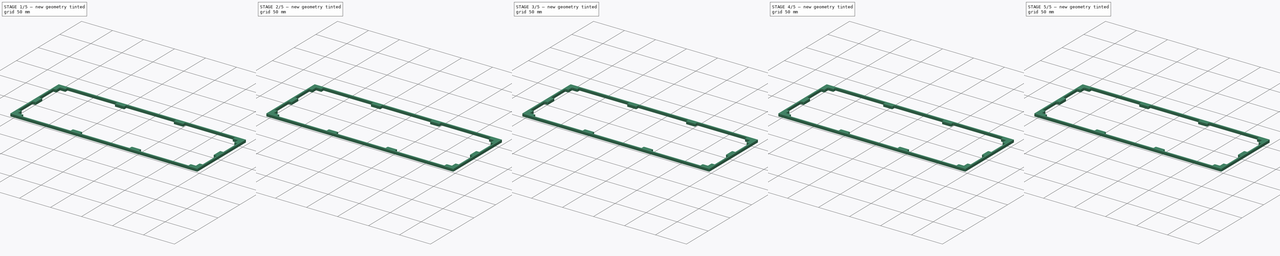
[diagram: build sequence overview — one tinted view per stage of 5, left to right]
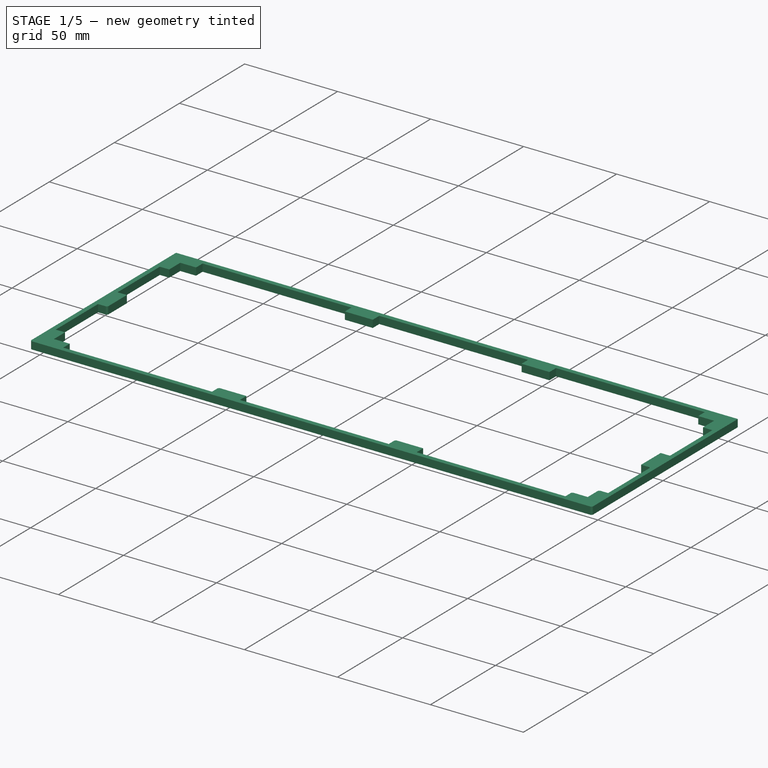
[diagram: stage 1 of 5 — iso view after this stage's code; geometry added in this stage tinted green]
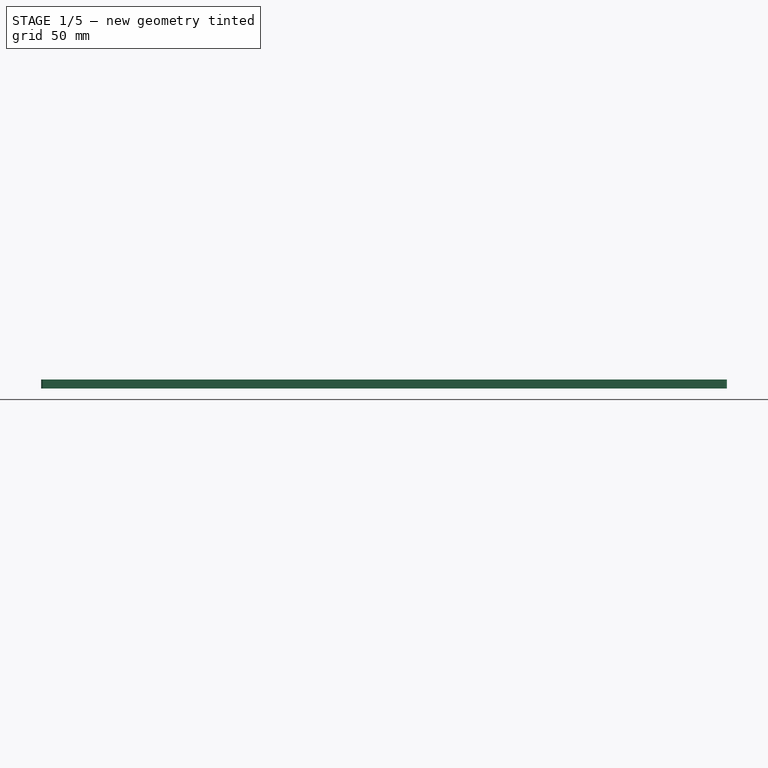
[diagram: stage 1 of 5 — front view after this stage's code; geometry added in this stage tinted green]
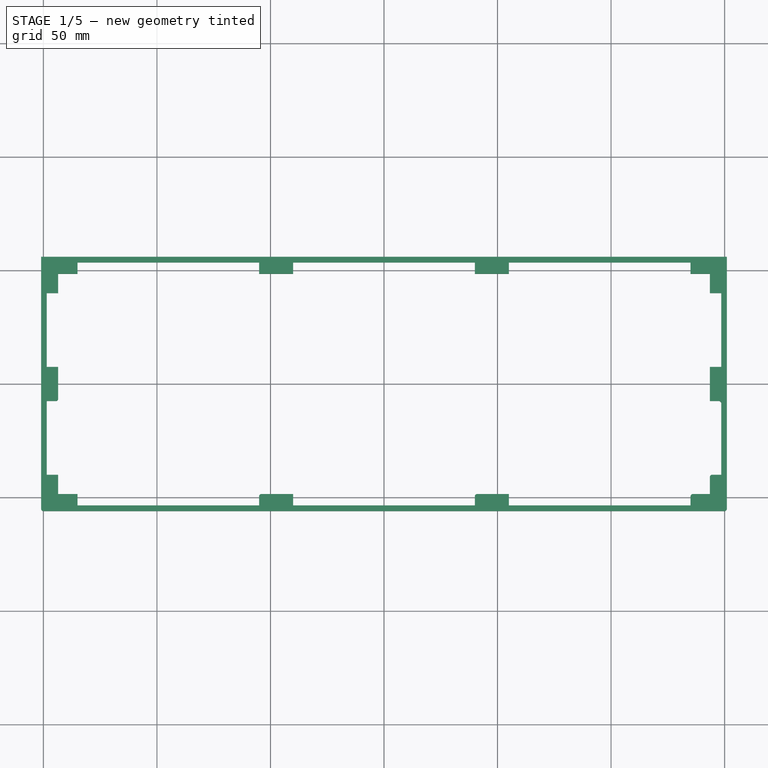
[diagram: stage 1 of 5 — top view after this stage's code; geometry added in this stage tinted green]
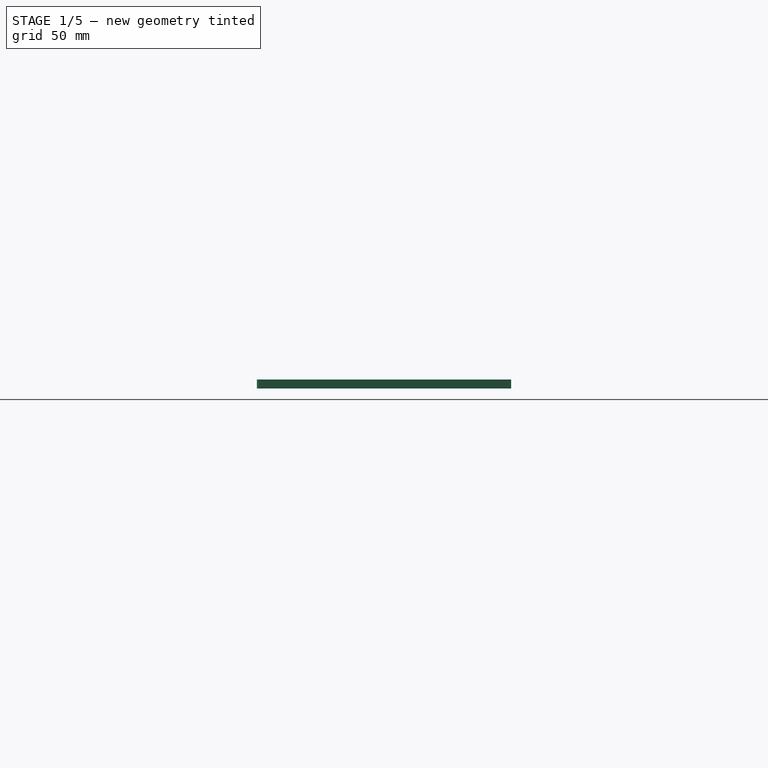
[diagram: stage 1 of 5 — right view after this stage's code; geometry added in this stage tinted green]
FCSTD DOCUMENT  (FreeCAD 0.19R)
Label: jykb60case_02
License: All rights reserved
LicenseURL: http://en.wikipedia.org/wiki/All_rights_reserved
objects: PartDesign::Fillet×48, Sketcher::SketchObject×2, PartDesign::Pad×1, PartDesign::Pocket×1, PartDesign::Body×1
note: 103 computed .brp shape members not serialized (recipe doc carries the construction recipe); baked Part::Feature solids carry a one-line shape summary decoded from their .brp

FEATURE [Sketcher::SketchObject] Sketch
  FullyConstrained = true
  MapMode = 5
  Support = -> [XY_Plane]
  sketch-geometry (8):
    g0: LineSegment StartX=-151 StartY=56 StartZ=0 EndX=151 EndY=56 EndZ=0
    g1: LineSegment StartX=151 StartY=56 StartZ=0 EndX=151 EndY=-56 EndZ=0
    g2: LineSegment StartX=151 StartY=-56 StartZ=0 EndX=-151 EndY=-56 EndZ=0
    g3: LineSegment StartX=-151 StartY=-56 StartZ=0 EndX=-151 EndY=56 EndZ=0
    g4: LineSegment StartX=-143.5 StartY=48.5 StartZ=0 EndX=143.5 EndY=48.5 EndZ=0
    g5: LineSegment StartX=143.5 StartY=48.5 StartZ=0 EndX=143.5 EndY=-48.5 EndZ=0
    g6: LineSegment StartX=143.5 StartY=-48.5 StartZ=0 EndX=-143.5 EndY=-48.5 EndZ=0
    g7: LineSegment StartX=-143.5 StartY=-48.5 StartZ=0 EndX=-143.5 EndY=48.5 EndZ=0
  constraints (22):
    c: Coincident(g0,g1)
    c: Coincident(g1,g2)
    c: Coincident(g2,g3)
    c: Coincident(g3,g0)
    c: Horizontal(g0)
    c: Horizontal(g2)
    c: Vertical(g1)
    c: Vertical(g3)
    c: DistanceX(g0,g0) = 302
    c: DistanceY(g3,g3) = 112
    c: Coincident(g4,g5)
    c: Coincident(g5,g6)
    c: Coincident(g6,g7)
    c: Coincident(g7,g4)
    c: Horizontal(g4)
    c: Horizontal(g6)
    c: Vertical(g5)
    c: Vertical(g7)
    c: DistanceX(g4,g4) = 287
    c: DistanceY(g7,g7) = 97
    c: Symmetric(g4,g5,g-1)
    c: Symmetric(g0,g1,g-1)
FEATURE [PartDesign::Pad] Pad
  Direction = (1,1,1)
  Length = 4
  Length2 = 100
  Profile = -> Sketch
  Type = 0
FEATURE [Sketcher::SketchObject] Sketch001
  FullyConstrained = true
  MapMode = 5
  Placement = pos=(0,0,4) rot=(0,0,1;0rad)
  Support = -> [Pad]
  sketch-geometry (40):
    g0: LineSegment StartX=-40 StartY=53.5 StartZ=0 EndX=40 EndY=53.5 EndZ=0
    g1: LineSegment StartX=40 StartY=53.5 StartZ=0 EndX=40 EndY=48.5 EndZ=0
    g2: LineSegment StartX=40 StartY=48.5 StartZ=0 EndX=-40 EndY=48.5 EndZ=0
    g3: LineSegment StartX=-40 StartY=48.5 StartZ=0 EndX=-40 EndY=53.5 EndZ=0
    g4: LineSegment StartX=-40 StartY=-48.5 StartZ=0 EndX=40 EndY=-48.5 EndZ=0
    g5: LineSegment StartX=40 StartY=-48.5 StartZ=0 EndX=40 EndY=-53.5 EndZ=0
    g6: LineSegment StartX=40 StartY=-53.5 StartZ=0 EndX=-40 EndY=-53.5 EndZ=0
    g7: LineSegment StartX=-40 StartY=-53.5 StartZ=0 EndX=-40 EndY=-48.5 EndZ=0
    g8: LineSegment StartX=-135 StartY=-48.5 StartZ=0 EndX=-55 EndY=-48.5 EndZ=0
    g9: LineSegment StartX=-55 StartY=-48.5 StartZ=0 EndX=-55 EndY=-53.5 EndZ=0
    g10: LineSegment StartX=-55 StartY=-53.5 StartZ=0 EndX=-135 EndY=-53.5 EndZ=0
    g11: LineSegment StartX=-135 StartY=-53.5 StartZ=0 EndX=-135 EndY=-48.5 EndZ=0
    g12: LineSegment StartX=-135 StartY=53.5 StartZ=0 EndX=-55 EndY=53.5 EndZ=0
    g13: LineSegment StartX=-55 StartY=53.5 StartZ=0 EndX=-55 EndY=48.5 EndZ=0
    g14: LineSegment StartX=-55 StartY=48.5 StartZ=0 EndX=-135 EndY=48.5 EndZ=0
    g15: LineSegment StartX=-135 StartY=48.5 StartZ=0 EndX=-135 EndY=53.5 EndZ=0
    g16: LineSegment StartX=55 StartY=53.5 StartZ=0 EndX=135 EndY=53.5 EndZ=0
    g17: LineSegment StartX=135 StartY=53.5 StartZ=0 EndX=135 EndY=48.5 EndZ=0
    g18: LineSegment StartX=135 StartY=48.5 StartZ=0 EndX=55 EndY=48.5 EndZ=0
    g19: LineSegment StartX=55 StartY=48.5 StartZ=0 EndX=55 EndY=53.5 EndZ=0
    g20: LineSegment StartX=55 StartY=-48.5 StartZ=0 EndX=135 EndY=-48.5 EndZ=0
    g21: LineSegment StartX=135 StartY=-48.5 StartZ=0 EndX=135 EndY=-53.5 EndZ=0
    g22: LineSegment StartX=135 StartY=-53.5 StartZ=0 EndX=55 EndY=-53.5 EndZ=0
    g23: LineSegment StartX=55 StartY=-53.5 StartZ=0 EndX=55 EndY=-48.5 EndZ=0
    g24: LineSegment StartX=-148.5 StartY=40 StartZ=0 EndX=-143.5 EndY=40 EndZ=0
    g25: LineSegment StartX=-143.5 StartY=40 StartZ=0 EndX=-143.5 EndY=7.5 EndZ=0
    g26: LineSegment StartX=-143.5 StartY=7.5 StartZ=0 EndX=-148.5 EndY=7.5 EndZ=0
    g27: LineSegment StartX=-148.5 StartY=7.5 StartZ=0 EndX=-148.5 EndY=40 EndZ=0
    g28: LineSegment StartX=-148.5 StartY=-7.5 StartZ=0 EndX=-143.5 EndY=-7.5 EndZ=0
    g29: LineSegment StartX=-143.5 StartY=-7.5 StartZ=0 EndX=-143.5 EndY=-40 EndZ=0
    g30: LineSegment StartX=-143.5 StartY=-40 StartZ=0 EndX=-148.5 EndY=-40 EndZ=0
    g31: LineSegment StartX=-148.5 StartY=-40 StartZ=0 EndX=-148.5 EndY=-7.5 EndZ=0
    g32: LineSegment StartX=143.5 StartY=40 StartZ=0 EndX=148.5 EndY=40 EndZ=0
    g33: LineSegment StartX=148.5 StartY=40 StartZ=0 EndX=148.5 EndY=7.5 EndZ=0
    g34: LineSegment StartX=148.5 StartY=7.5 StartZ=0 EndX=143.5 EndY=7.5 EndZ=0
    g35: LineSegment StartX=143.5 StartY=7.5 StartZ=0 EndX=143.5 EndY=40 EndZ=0
    g36: LineSegment StartX=143.5 StartY=-7.5 StartZ=0 EndX=148.5 EndY=-7.5 EndZ=0
    g37: LineSegment StartX=148.5 StartY=-7.5 StartZ=0 EndX=148.5 EndY=-40 EndZ=0
    g38: LineSegment StartX=148.5 StartY=-40 StartZ=0 EndX=143.5 EndY=-40 EndZ=0
    g39: LineSegment StartX=143.5 StartY=-40 StartZ=0 EndX=143.5 EndY=-7.5 EndZ=0
  constraints (120):
    c: Coincident(g0,g1)
    c: Coincident(g1,g2)
    c: Coincident(g2,g3)
    c: Coincident(g3,g0)
    c: Horizontal(g0)
    c: Horizontal(g2)
    c: Vertical(g1)
    c: Vertical(g3)
    c: DistanceX(g0,g0) = 80
    c: DistanceY(g3,g3) = 5
    c: DistanceY(g-1,g1) = 48.5
    c: DistanceX(g-1,g0) = 40
    c: Coincident(g4,g5)
    c: Coincident(g5,g6)
    c: Coincident(g6,g7)
    c: Coincident(g7,g4)
    c: Horizontal(g4)
    c: Horizontal(g6)
    c: Vertical(g5)
    c: Vertical(g7)
    c: DistanceX(g6,g6) = 80
    c: DistanceY(g7,g7) = 5
    c: DistanceY(g4,g-1) = 48.5
    c: DistanceX(g4,g-1) = 40
    c: Coincident(g8,g9)
    c: Coincident(g9,g10)
    c: Coincident(g10,g11)
    c: Coincident(g11,g8)
    c: Horizontal(g8)
    c: Horizontal(g10)
    c: Vertical(g9)
    c: Vertical(g11)
    c: DistanceX(g10,g10) = 80
    c: DistanceY(g11,g11) = 5
    c: DistanceY(g8,g-1) = 48.5
    c: DistanceX(g9,g6) = 15
    c: Coincident(g12,g13)
    c: Coincident(g13,g14)
    c: Coincident(g14,g15)
    c: Coincident(g15,g12)
    c: Horizontal(g12)
    c: Horizontal(g14)
    c: Vertical(g13)
    c: Vertical(g15)
    c: DistanceX(g12,g12) = 80
    c: DistanceY(g15,g15) = 5
    c: DistanceY(g-1,g13) = 48.5
    c: DistanceX(g12,g0) = 15
    c: Coincident(g16,g17)
    c: Coincident(g17,g18)
    c: Coincident(g18,g19)
    c: Coincident(g19,g16)
    c: Horizontal(g16)
    c: Horizontal(g18)
    c: Vertical(g17)
    c: Vertical(g19)
    c: DistanceX(g16,g16) = 80
    c: DistanceY(g19,g19) = 5
    c: DistanceY(g-1,g18) = 48.5
    c: DistanceX(g0,g16) = 15
    c: Coincident(g20,g21)
    c: Coincident(g21,g22)
    c: Coincident(g22,g23)
    c: Coincident(g23,g20)
    c: Horizontal(g20)
    c: Horizontal(g22)
    c: Vertical(g21)
    c: Vertical(g23)
    c: DistanceX(g20,g20) = 80
    c: DistanceY(g23,g23) = 5
    c: DistanceY(g20,g-1) = 48.5
    c: DistanceX(g5,g22) = 15
    c: Coincident(g24,g25)
    c: Coincident(g25,g26)
    c: Coincident(g26,g27)
    c: Coincident(g27,g24)
    c: Horizontal(g24)
    c: Horizontal(g26)
    c: Vertical(g25)
    c: Vertical(g27)
    c: DistanceY(g27,g27) = 32.5
    c: DistanceX(g26,g26) = 5
    c: DistanceX(g24,g-1) = 143.5
    c: DistanceY(g-1,g26) = 7.5
    c: Coincident(g28,g29)
    c: Coincident(g29,g30)
    c: Coincident(g30,g31)
    c: Coincident(g31,g28)
    c: Horizontal(g28)
    c: Horizontal(g30)
    c: Vertical(g29)
    c: Vertical(g31)
    c: DistanceY(g31,g31) = 32.5
    c: DistanceX(g30,g30) = 5
    c: DistanceX(g28,g-1) = 143.5
    c: DistanceY(g28,g-1) = 7.5
    c: Coincident(g32,g33)
    c: Coincident(g33,g34)
    c: Coincident(g34,g35)
    c: Coincident(g35,g32)
    c: Horizontal(g32)
    c: Horizontal(g34)
    c: Vertical(g33)
    c: Vertical(g35)
    c: DistanceY(g33,g33) = 32.5
    c: DistanceX(g32,g32) = 5
    c: DistanceX(g-1,g34) = 143.5
    c: DistanceY(g-1,g33) = 7.5
    c: Coincident(g36,g37)
    c: Coincident(g37,g38)
    c: Coincident(g38,g39)
    c: Coincident(g39,g36)
    c: Horizontal(g36)
    c: Horizontal(g38)
    c: Vertical(g37)
    c: Vertical(g39)
    c: DistanceY(g37,g37) = 32.5
    c: DistanceX(g38,g38) = 5
    c: DistanceX(g-1,g36) = 143.5
    c: DistanceY(g36,g-1) = 7.5
FEATURE [PartDesign::Pocket] Pocket
  BaseFeature = -> Pad
  Length = 5
  Length2 = 100
  Profile = -> Sketch001
  Type = 0
FEATURE [PartDesign::Fillet] Fillet
  Base = -> Pocket [Edge5]
  BaseFeature = -> Pocket
  Radius = 1
  SupportTransform = false
FEATURE [PartDesign::Fillet] Fillet001
  Base = -> Fillet [Edge108]
  BaseFeature = -> Fillet
  Radius = 1
  SupportTransform = false
FEATURE [PartDesign::Fillet] Fillet002
  Base = -> Fillet001 [Edge81]
  BaseFeature = -> Fillet001
  Radius = 1
  SupportTransform = false
FEATURE [PartDesign::Fillet] Fillet003
  Base = -> Fillet002 [Edge72]
  BaseFeature = -> Fillet002
  Radius = 1
  SupportTransform = false
FEATURE [PartDesign::Fillet] Fillet004
  Base = -> Fillet003 [Edge73]
  BaseFeature = -> Fillet003
  Radius = 1
  SupportTransform = false
FEATURE [PartDesign::Fillet] Fillet005
  Base = -> Fillet004 [Edge66]
  BaseFeature = -> Fillet004
  Radius = 1
  SupportTransform = false
FEATURE [PartDesign::Fillet] Fillet006
  Base = -> Fillet005 [Edge160]
  BaseFeature = -> Fillet005
  Radius = 1
  SupportTransform = false
FEATURE [PartDesign::Fillet] Fillet007
  Base = -> Fillet006 [Edge80]
  BaseFeature = -> Fillet006
  Radius = 1
  SupportTransform = false
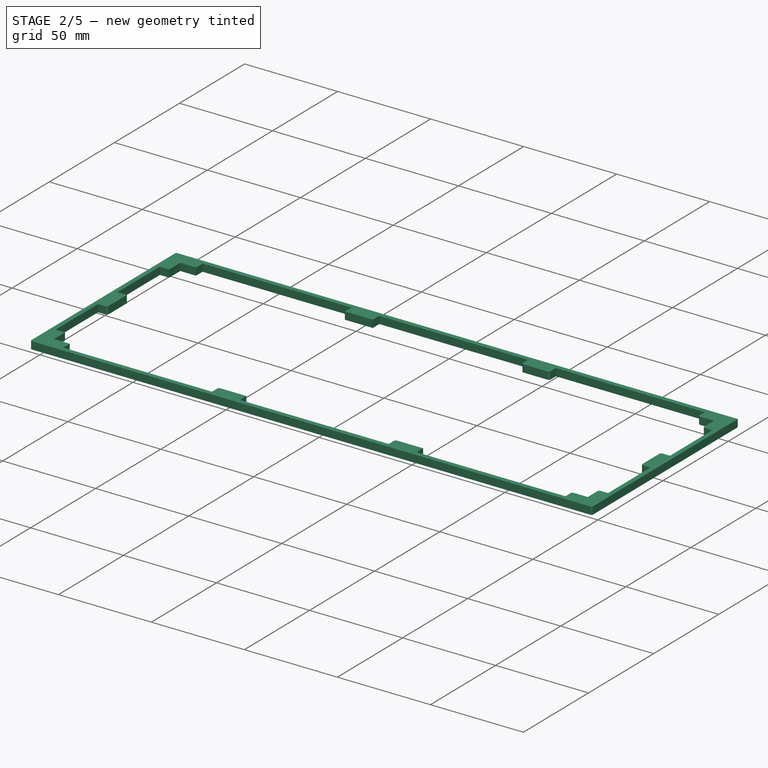
[diagram: stage 2 of 5 — iso view after this stage's code; geometry added in this stage tinted green]
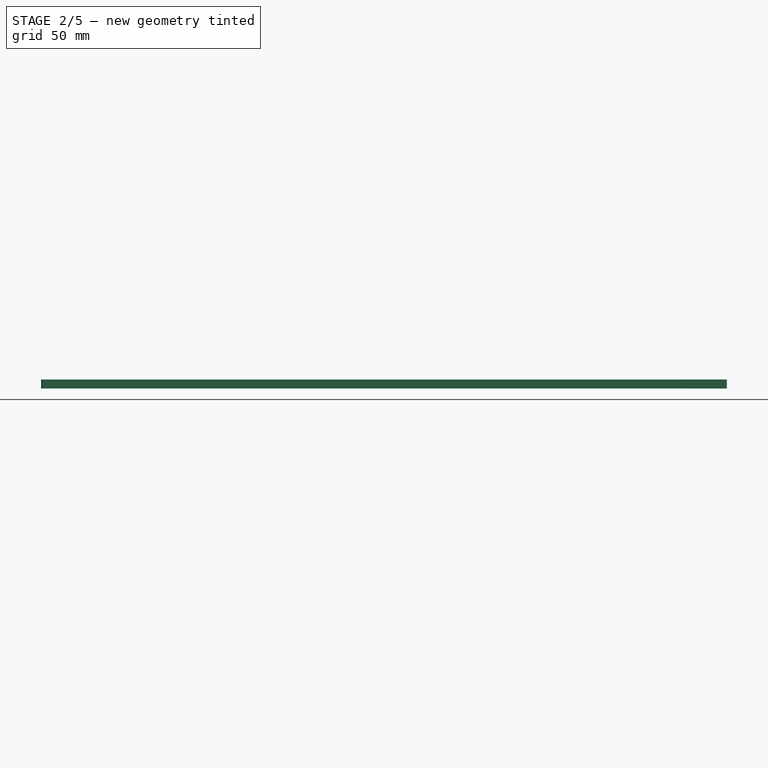
[diagram: stage 2 of 5 — front view after this stage's code; geometry added in this stage tinted green]
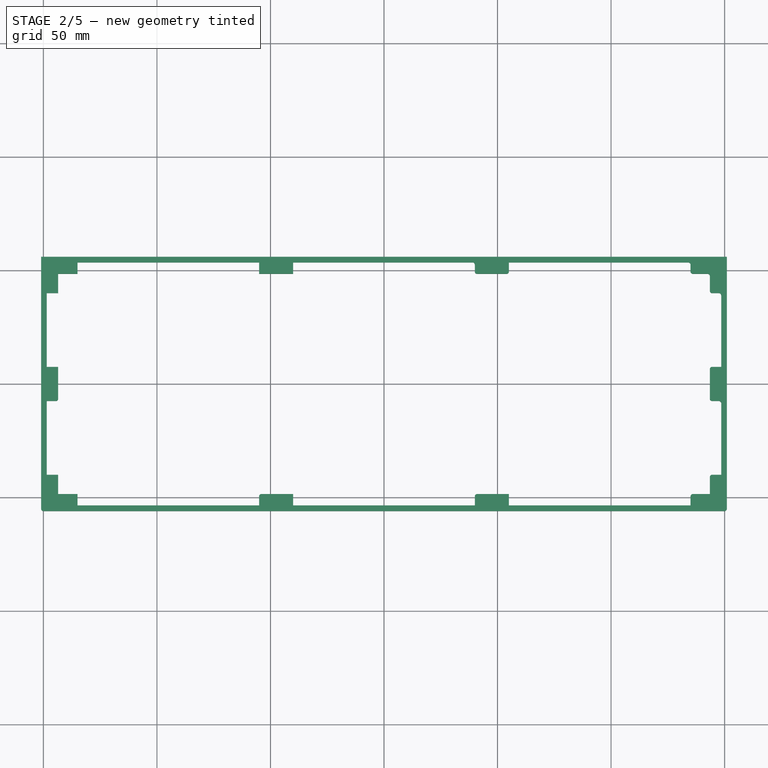
[diagram: stage 2 of 5 — top view after this stage's code; geometry added in this stage tinted green]
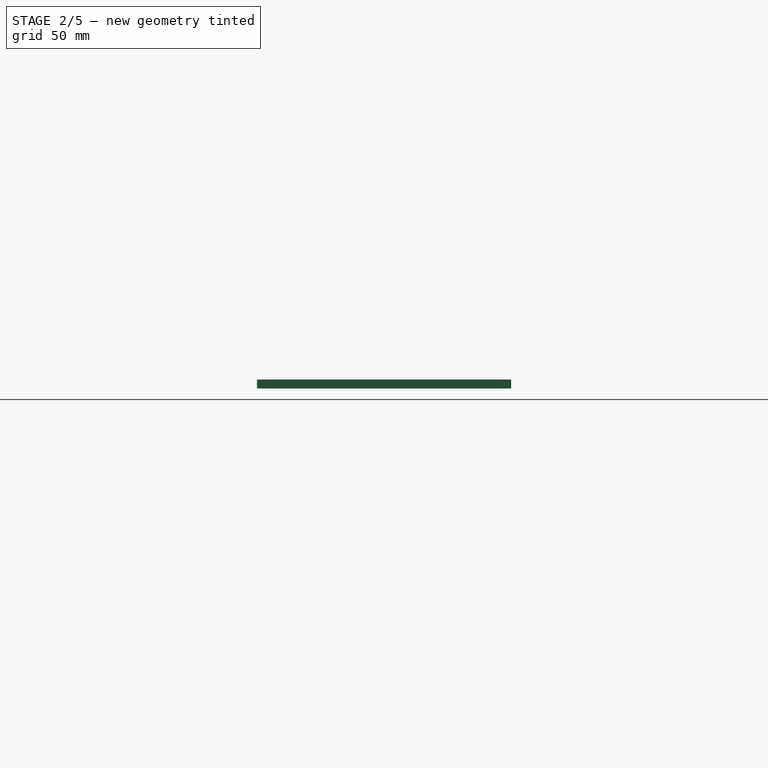
[diagram: stage 2 of 5 — right view after this stage's code; geometry added in this stage tinted green]
FEATURE [PartDesign::Fillet] Fillet008
  Base = -> Fillet007 [Edge65]
  BaseFeature = -> Fillet007
  Radius = 1
  SupportTransform = false
FEATURE [PartDesign::Fillet] Fillet009
  Base = -> Fillet008 [Edge65]
  BaseFeature = -> Fillet008
  Radius = 1
  SupportTransform = false
FEATURE [PartDesign::Fillet] Fillet010
  Base = -> Fillet009 [Edge71]
  BaseFeature = -> Fillet009
  Radius = 1
  SupportTransform = false
FEATURE [PartDesign::Fillet] Fillet011
  Base = -> Fillet010 [Edge68]
  BaseFeature = -> Fillet010
  Radius = 1
  SupportTransform = false
FEATURE [PartDesign::Fillet] Fillet012
  Base = -> Fillet011 [Edge68]
  BaseFeature = -> Fillet011
  Radius = 1
  SupportTransform = false
FEATURE [PartDesign::Fillet] Fillet013
  Base = -> Fillet012 [Edge69]
  BaseFeature = -> Fillet012
  Radius = 1
  SupportTransform = false
FEATURE [PartDesign::Fillet] Fillet014
  Base = -> Fillet013 [Edge71]
  BaseFeature = -> Fillet013
  Radius = 1
  SupportTransform = false
FEATURE [PartDesign::Fillet] Fillet015
  Base = -> Fillet014 [Edge76]
  BaseFeature = -> Fillet014
  Radius = 1
  SupportTransform = false
FEATURE [PartDesign::Fillet] Fillet016
  Base = -> Fillet015 [Edge72]
  BaseFeature = -> Fillet015
  Radius = 1
  SupportTransform = false
FEATURE [PartDesign::Fillet] Fillet017
  Base = -> Fillet016 [Edge74]
  BaseFeature = -> Fillet016
  Radius = 1
  SupportTransform = false
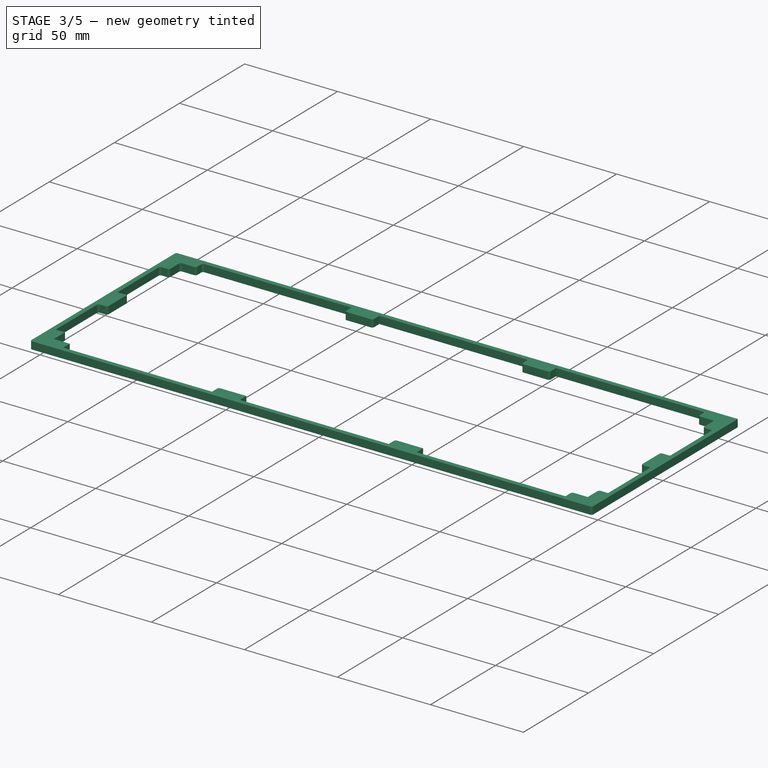
[diagram: stage 3 of 5 — iso view after this stage's code; geometry added in this stage tinted green]
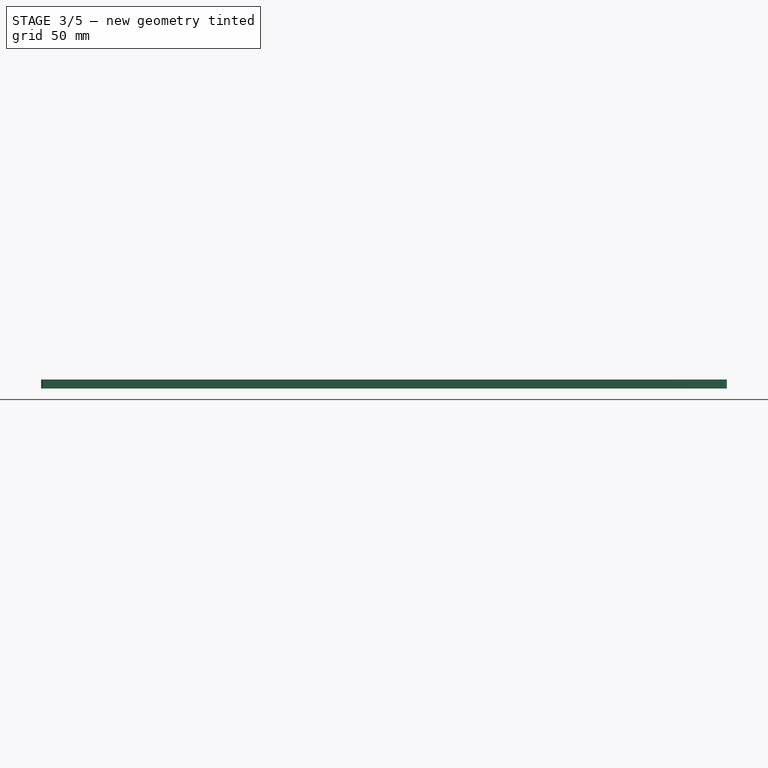
[diagram: stage 3 of 5 — front view after this stage's code; geometry added in this stage tinted green]
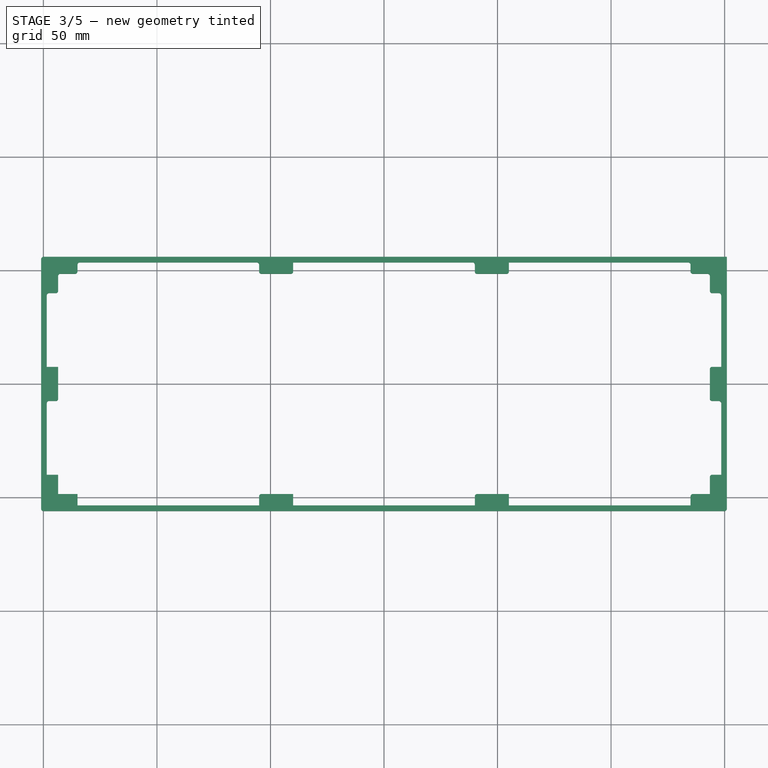
[diagram: stage 3 of 5 — top view after this stage's code; geometry added in this stage tinted green]
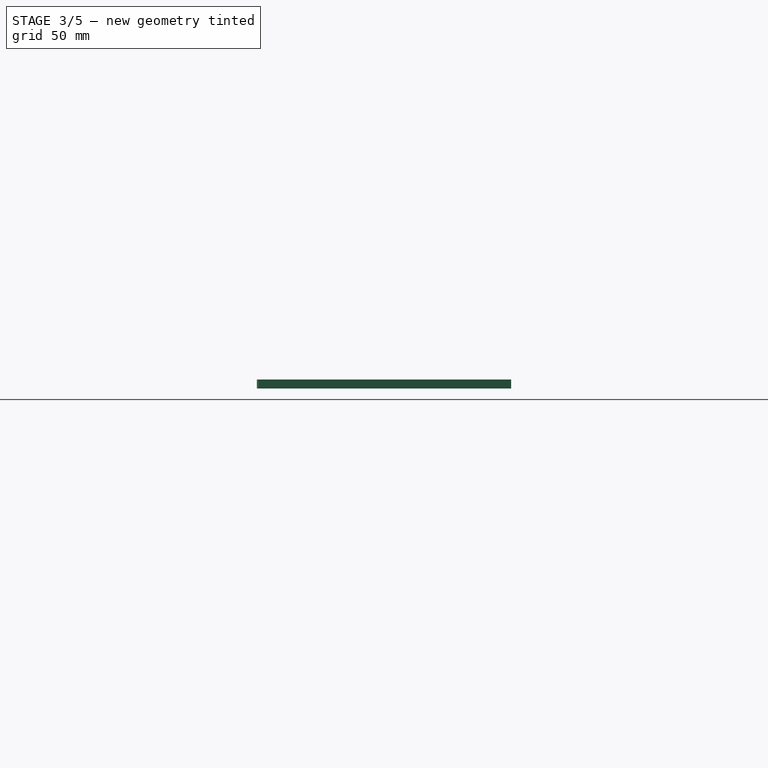
[diagram: stage 3 of 5 — right view after this stage's code; geometry added in this stage tinted green]
FEATURE [PartDesign::Fillet] Fillet018
  Base = -> Fillet017 [Edge79]
  BaseFeature = -> Fillet017
  Radius = 1
  SupportTransform = false
FEATURE [PartDesign::Fillet] Fillet019
  Base = -> Fillet018 [Edge75]
  BaseFeature = -> Fillet018
  Radius = 1
  SupportTransform = false
FEATURE [PartDesign::Fillet] Fillet020
  Base = -> Fillet019 [Edge77]
  BaseFeature = -> Fillet019
  Radius = 1
  SupportTransform = false
FEATURE [PartDesign::Fillet] Fillet021
  Base = -> Fillet020 [Edge90]
  BaseFeature = -> Fillet020
  Radius = 1
  SupportTransform = false
FEATURE [PartDesign::Fillet] Fillet022
  Base = -> Fillet021 [Edge76]
  BaseFeature = -> Fillet021
  Radius = 1
  SupportTransform = false
FEATURE [PartDesign::Fillet] Fillet023
  Base = -> Fillet022 [Edge211]
  BaseFeature = -> Fillet022
  Radius = 1
  SupportTransform = false
FEATURE [PartDesign::Fillet] Fillet024
  Base = -> Fillet023 [Edge88]
  BaseFeature = -> Fillet023
  Radius = 1
  SupportTransform = false
FEATURE [PartDesign::Fillet] Fillet025
  Base = -> Fillet024 [Edge84]
  BaseFeature = -> Fillet024
  Radius = 1
  SupportTransform = false
FEATURE [PartDesign::Fillet] Fillet026
  Base = -> Fillet025 [Edge101]
  BaseFeature = -> Fillet025
  Radius = 1
  SupportTransform = false
FEATURE [PartDesign::Fillet] Fillet027
  Base = -> Fillet026 [Edge100]
  BaseFeature = -> Fillet026
  Radius = 1
  SupportTransform = false
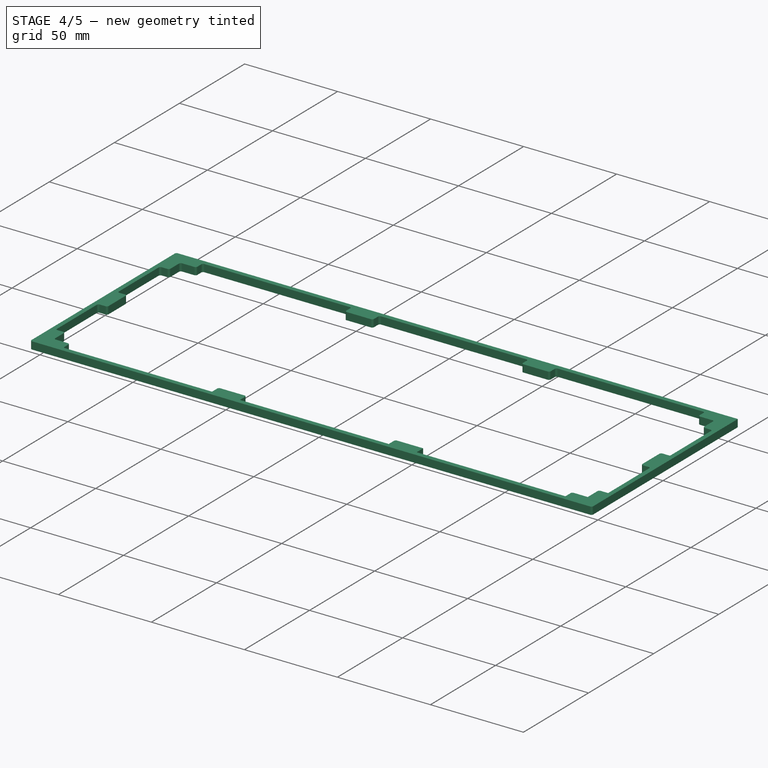
[diagram: stage 4 of 5 — iso view after this stage's code; geometry added in this stage tinted green]
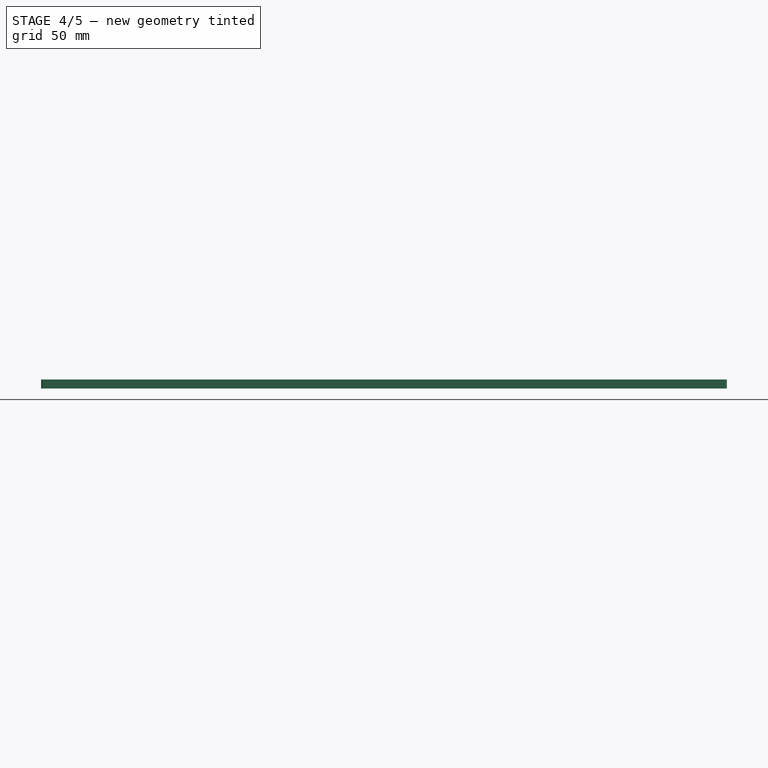
[diagram: stage 4 of 5 — front view after this stage's code; geometry added in this stage tinted green]
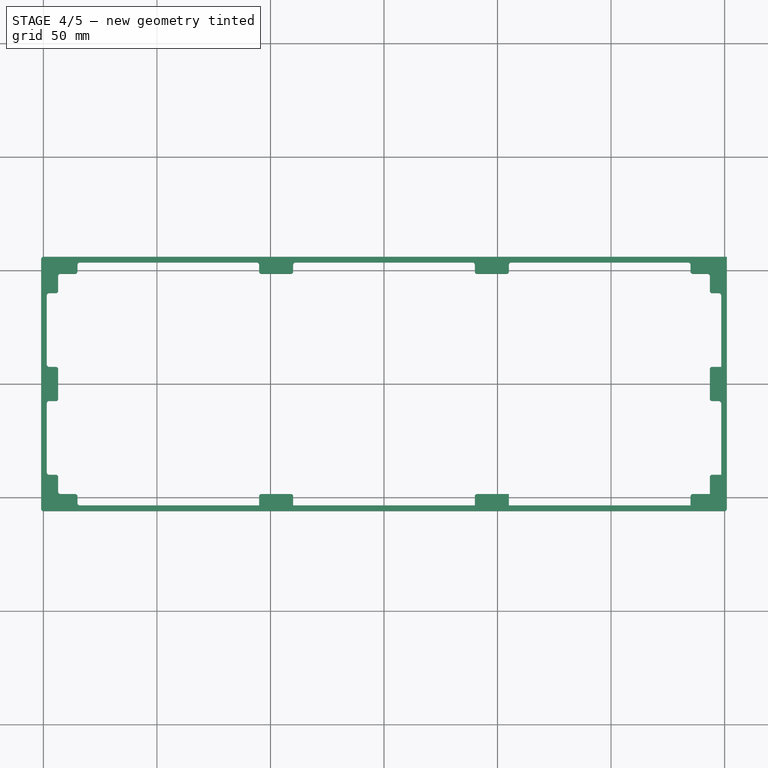
[diagram: stage 4 of 5 — top view after this stage's code; geometry added in this stage tinted green]
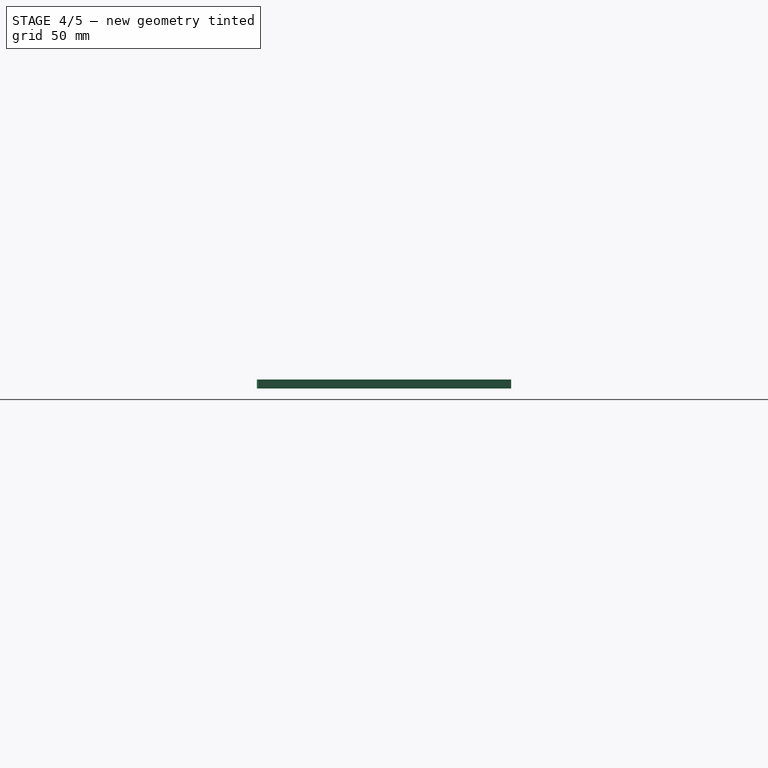
[diagram: stage 4 of 5 — right view after this stage's code; geometry added in this stage tinted green]
FEATURE [PartDesign::Fillet] Fillet028
  Base = -> Fillet027 [Edge89]
  BaseFeature = -> Fillet027
  Radius = 1
  SupportTransform = false
FEATURE [PartDesign::Fillet] Fillet029
  Base = -> Fillet028 [Edge90]
  BaseFeature = -> Fillet028
  Radius = 1
  SupportTransform = false
FEATURE [PartDesign::Fillet] Fillet030
  Base = -> Fillet029 [Edge213]
  BaseFeature = -> Fillet029
  Radius = 1
  SupportTransform = false
FEATURE [PartDesign::Fillet] Fillet031
  Base = -> Fillet030 [Edge106]
  BaseFeature = -> Fillet030
  Radius = 1
  SupportTransform = false
FEATURE [PartDesign::Fillet] Fillet032
  Base = -> Fillet031 [Edge153]
  BaseFeature = -> Fillet031
  Radius = 1
  SupportTransform = false
FEATURE [PartDesign::Fillet] Fillet033
  Base = -> Fillet032 [Edge90]
  BaseFeature = -> Fillet032
  Radius = 1
  SupportTransform = false
FEATURE [PartDesign::Fillet] Fillet034
  Base = -> Fillet033 [Edge107]
  BaseFeature = -> Fillet033
  Radius = 1
  SupportTransform = false
FEATURE [PartDesign::Fillet] Fillet035
  Base = -> Fillet034 [Edge99]
  BaseFeature = -> Fillet034
  Radius = 1
  SupportTransform = false
FEATURE [PartDesign::Fillet] Fillet036
  Base = -> Fillet035 [Edge101]
  BaseFeature = -> Fillet035
  Radius = 1
  SupportTransform = false
FEATURE [PartDesign::Fillet] Fillet037
  Base = -> Fillet036 [Edge105]
  BaseFeature = -> Fillet036
  Radius = 1
  SupportTransform = false
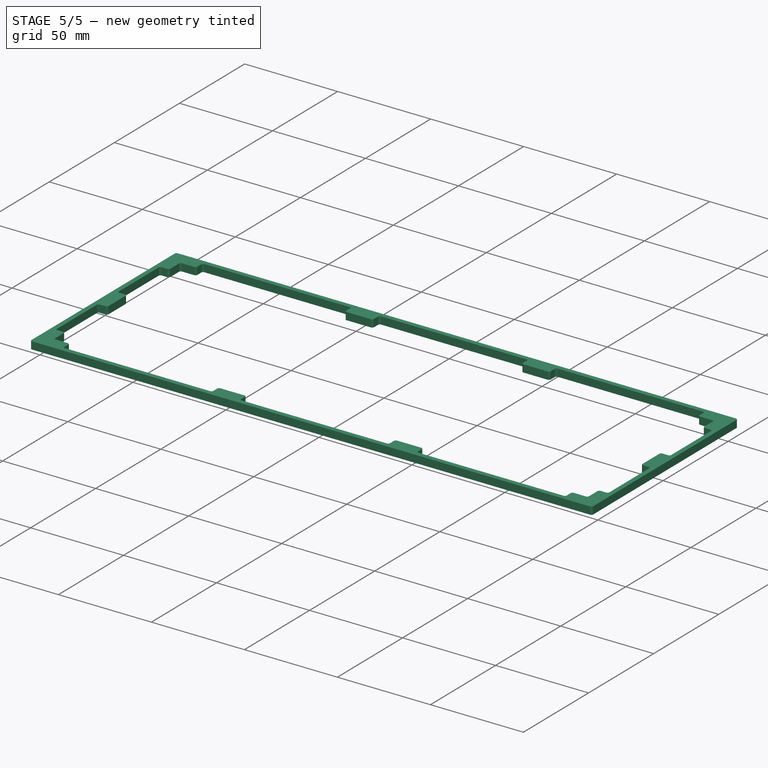
[diagram: stage 5 of 5 — iso view after this stage's code; geometry added in this stage tinted green]
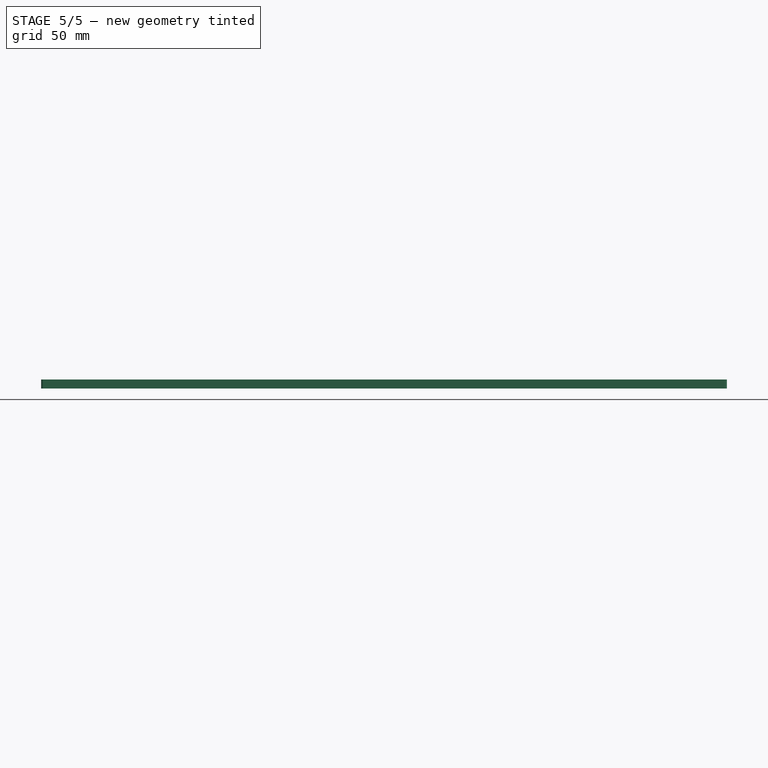
[diagram: stage 5 of 5 — front view after this stage's code; geometry added in this stage tinted green]
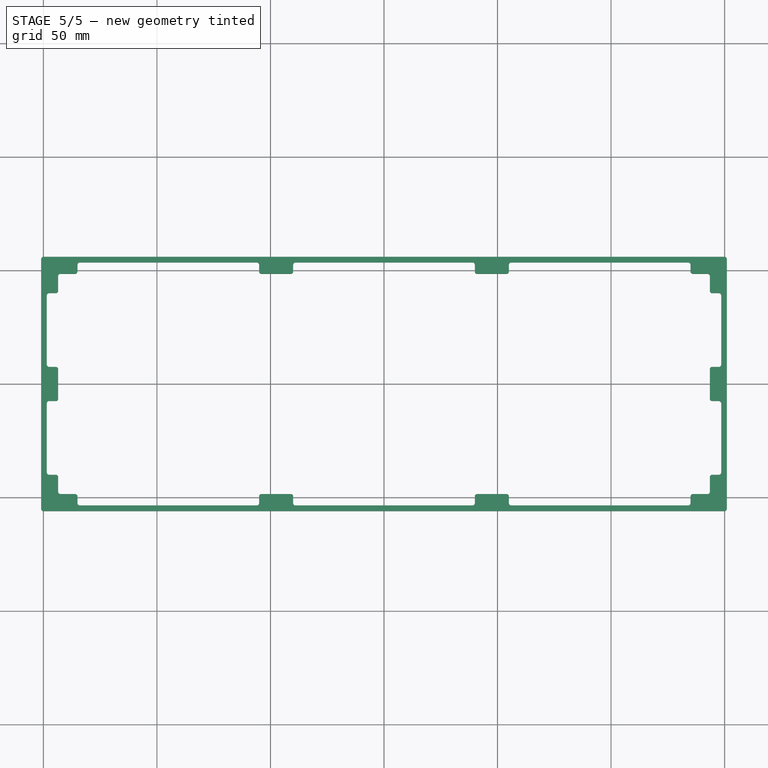
[diagram: stage 5 of 5 — top view after this stage's code; geometry added in this stage tinted green]
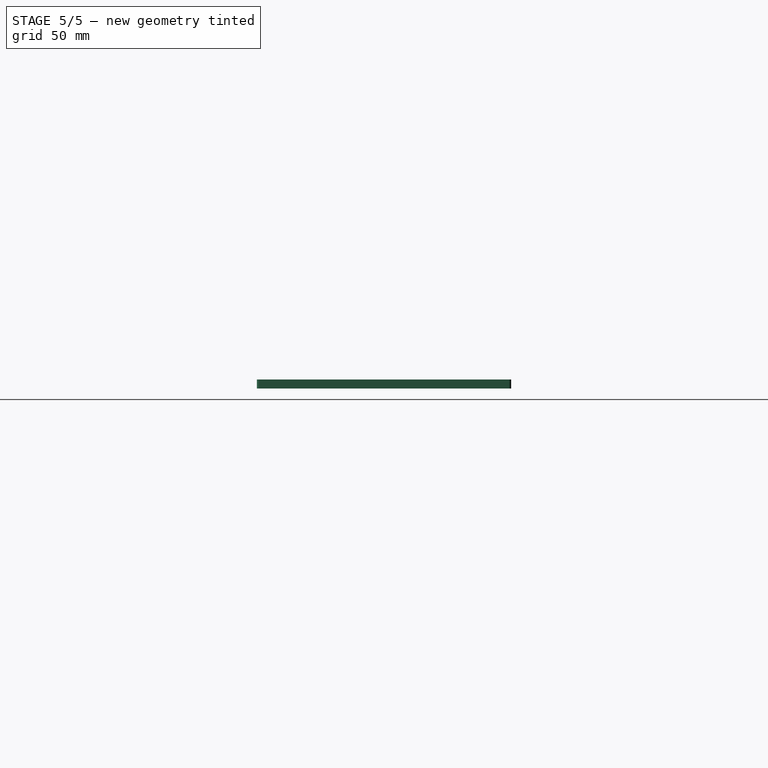
[diagram: stage 5 of 5 — right view after this stage's code; geometry added in this stage tinted green]
FEATURE [PartDesign::Fillet] Fillet038
  Base = -> Fillet037 [Edge95]
  BaseFeature = -> Fillet037
  Radius = 1
  SupportTransform = false
FEATURE [PartDesign::Fillet] Fillet039
  Base = -> Fillet038 [Edge107]
  BaseFeature = -> Fillet038
  Radius = 1
  SupportTransform = false
FEATURE [PartDesign::Fillet] Fillet040
  Base = -> Fillet039 [Edge97]
  BaseFeature = -> Fillet039
  Radius = 1
  SupportTransform = false
FEATURE [PartDesign::Fillet] Fillet041
  Base = -> Fillet040 [Edge136]
  BaseFeature = -> Fillet040
  Radius = 1
  SupportTransform = false
FEATURE [PartDesign::Fillet] Fillet042
  Base = -> Fillet041 [Edge117]
  BaseFeature = -> Fillet041
  Radius = 1
  SupportTransform = false
FEATURE [PartDesign::Fillet] Fillet043
  Base = -> Fillet042 [Edge267]
  BaseFeature = -> Fillet042
  Radius = 1
  SupportTransform = false
FEATURE [PartDesign::Fillet] Fillet044
  Base = -> Fillet043 [Edge152]
  BaseFeature = -> Fillet043
  Radius = 1
  SupportTransform = false
FEATURE [PartDesign::Fillet] Fillet045
  Base = -> Fillet044 [Edge104]
  BaseFeature = -> Fillet044
  Radius = 1
  SupportTransform = false
FEATURE [PartDesign::Fillet] Fillet046
  Base = -> Fillet045 [Edge121]
  BaseFeature = -> Fillet045
  Radius = 1
  SupportTransform = false
FEATURE [PartDesign::Fillet] Fillet047
  Base = -> Fillet046 [Edge128]
  BaseFeature = -> Fillet046
  Radius = 1
  SupportTransform = false
FEATURE [PartDesign::Body] Body
  Group = -> [Sketch,Pad,Sketch001,Pocket,Fillet,Fillet001,Fillet002,Fillet003,Fillet004,Fillet005,Fillet006,Fillet007,Fillet008,Fillet009,Fillet010,Fillet011,Fillet012,Fillet013,Fillet014,Fillet015,Fillet016,Fillet017,Fillet018,Fillet019,Fillet020,Fillet021,Fillet022,Fillet023,Fillet024,Fillet025,Fillet026,Fillet027,Fillet028,Fillet029,Fillet030,Fillet031,Fillet032,Fillet033,Fillet034,Fillet035,Fillet036,+11 more]
  Origin = -> Origin
  Tip = -> Fillet047
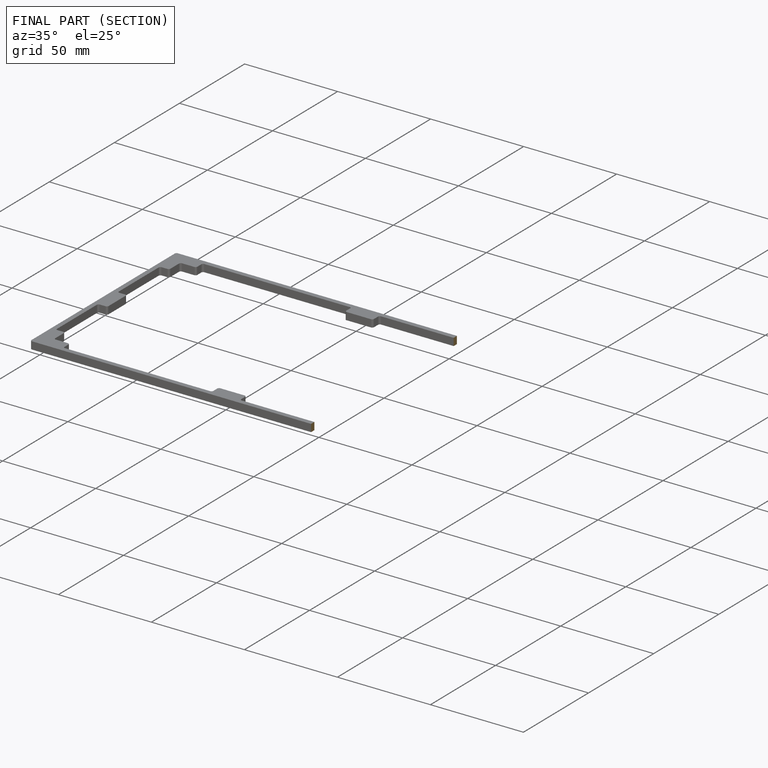
[diagram: finished part — half-section view (interior)]
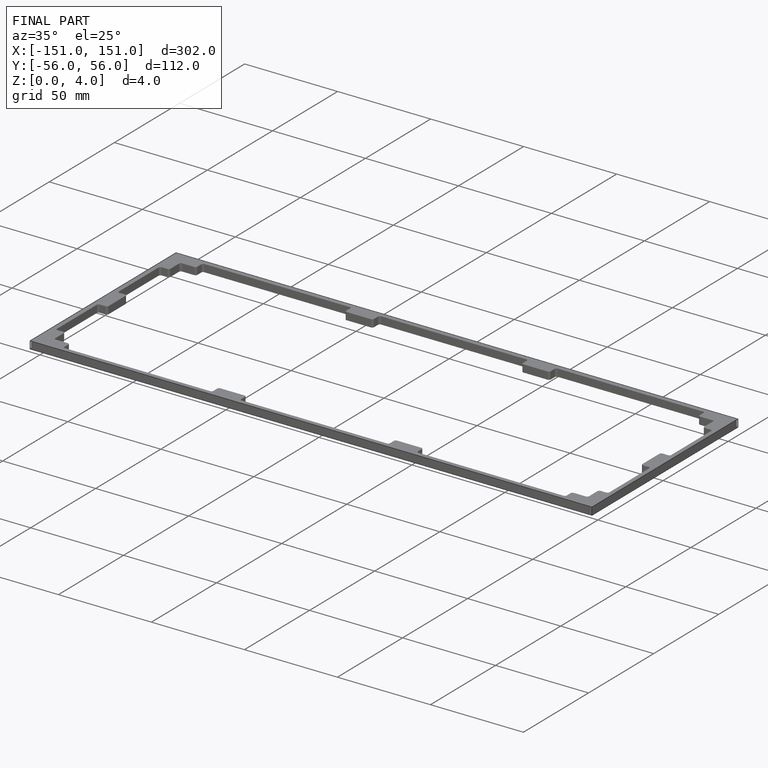
[diagram: finished part — iso view with bounding-box wireframe]
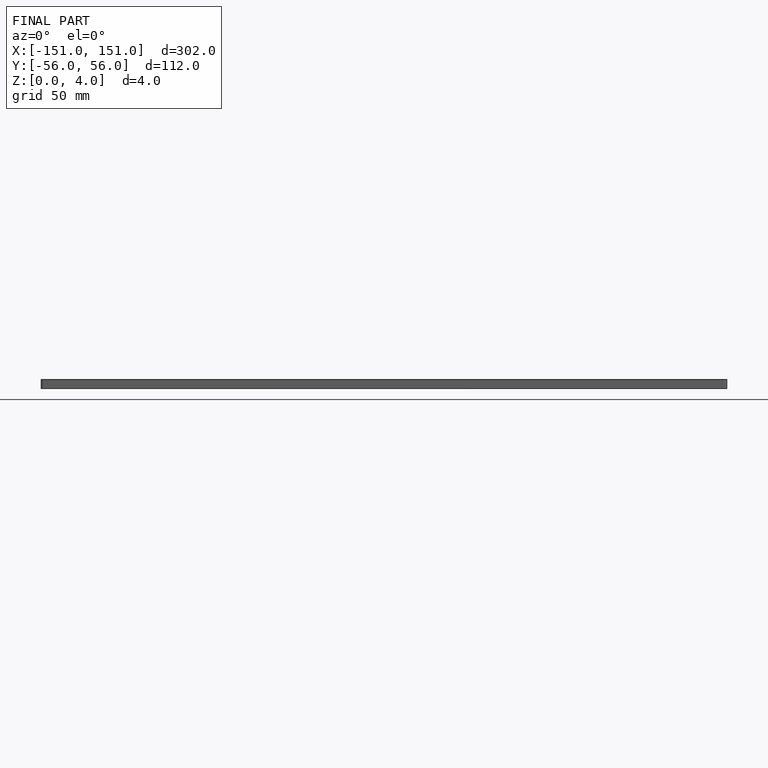
[diagram: finished part — front view with bounding-box wireframe]
